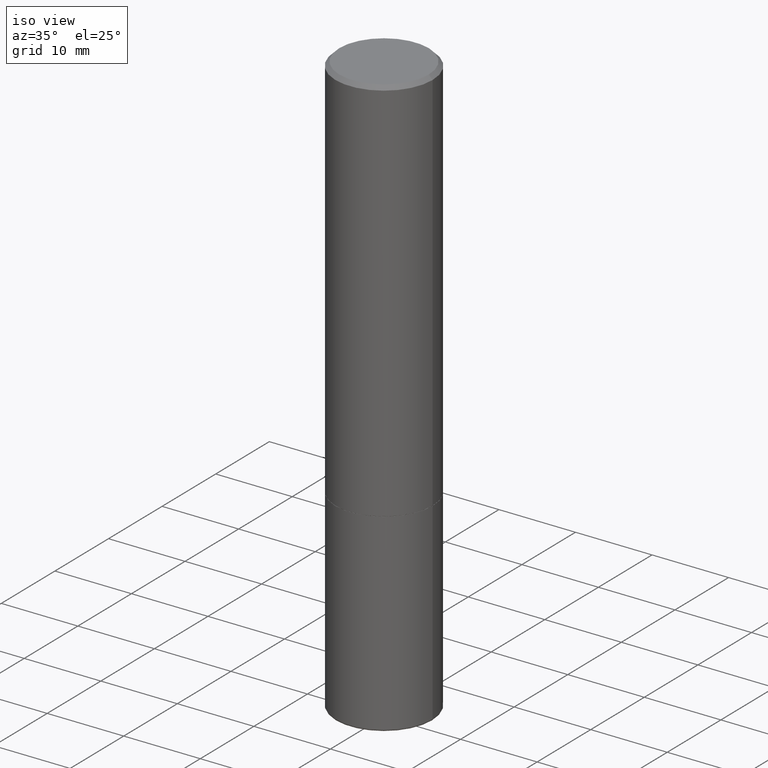
[diagram: clean part render]
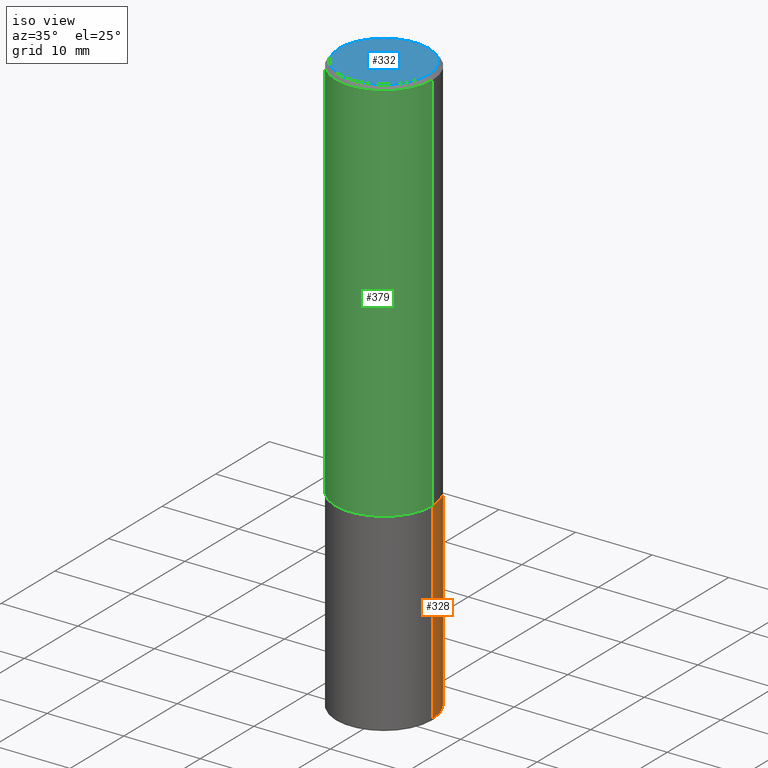
[diagram: same view with three faces highlighted in distinct colors, each labeled with its STEP entity id]
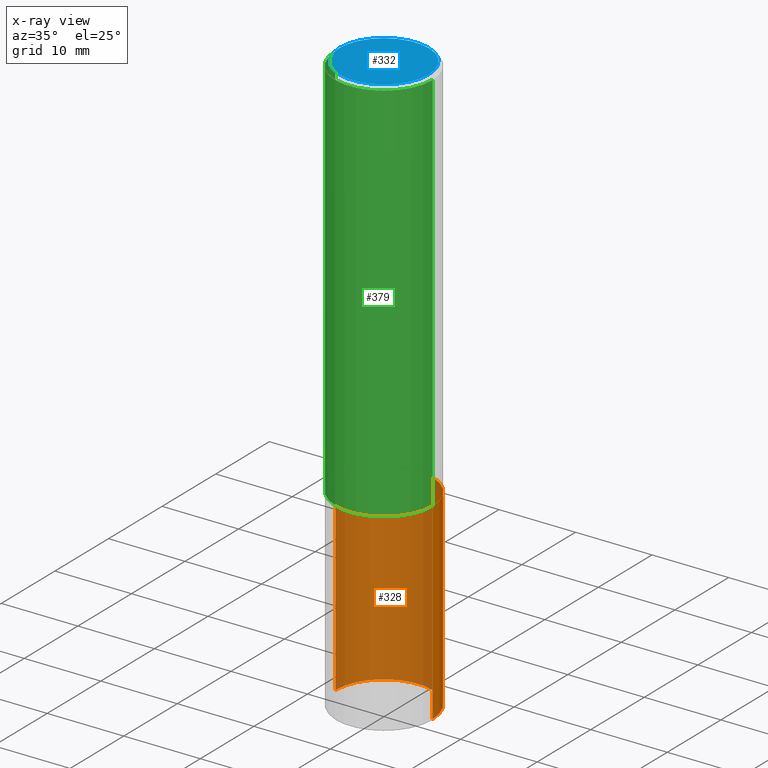
[diagram: x-ray of the same camera — body ghosted, the three highlighted faces saturated]
A machine part, iso view with three faces highlighted in distinct colors.
The next image is the same camera in x-ray (body ghosted, the three faces saturated) — at least one of them is partly hidden behind the body in this view.
Their STEP definitions:

[orange] entity #328 — the highlighted cylindrical surface (partial cylindrical patch) has radius 6.35 mm, axis along (-0, 0, 1).
#12 = EDGE_LOOP ( 'NONE', ( #334, #292, #47, #294 ) ) ;
#17 = CARTESIAN_POINT ( 'NONE',  ( 0.2499999999999998890, -1.218526987256257138E-14, -2.990000000000000213 ) ) ;
#24 = EDGE_CURVE ( 'NONE', #305, #231, #298, .T. ) ;
#39 = AXIS2_PLACEMENT_3D ( 'NONE', #308, #209, #180 ) ;
#47 = ORIENTED_EDGE ( 'NONE', *, *, #277, .F. ) ;
#60 = DIRECTION ( 'NONE',  ( -2.445468806185136597E-29, 3.491481338843145583E-15, 1.000000000000000000 ) ) ;
#95 = VECTOR ( 'NONE', #97, 39.37007874015748143 ) ;
#97 = DIRECTION ( 'NONE',  ( -2.445468806185136877E-29, 3.491481338843145188E-15, 1.000000000000000000 ) ) ;
#104 = VERTEX_POINT ( 'NONE', #260 ) ;
#114 = EDGE_CURVE ( 'NONE', #231, #248, #131, .T. ) ;
#129 = CARTESIAN_POINT ( 'NONE',  ( -0.2499999999999998890, -8.663172363740755817E-15, -2.990000000000000213 ) ) ;
#131 = LINE ( 'NONE', #333, #95 ) ;
#144 = CYLINDRICAL_SURFACE ( 'NONE', #238, 0.2500000000000000000 ) ;
#161 = LINE ( 'NONE', #401, #211 ) ;
#180 = DIRECTION ( 'NONE',  ( 1.000000000000000000, -6.982962677686266711E-15, 0.000000000000000000 ) ) ;
#184 = CARTESIAN_POINT ( 'NONE',  ( 7.311951730493558245E-29, -1.043952920314100628E-14, -2.990000000000000213 ) ) ;
#205 = EDGE_CURVE ( 'NONE', #305, #104, #161, .T. ) ;
#207 = CIRCLE ( 'NONE', #39, 0.2500000000000000000 ) ;
#209 = DIRECTION ( 'NONE',  ( -2.445468806185136597E-29, 3.491481338843145583E-15, 1.000000000000000000 ) ) ;
#211 = VECTOR ( 'NONE', #362, 39.37007874015748143 ) ;
#229 = AXIS2_PLACEMENT_3D ( 'NONE', #184, #60, #315 ) ;
#231 = VERTEX_POINT ( 'NONE', #129 ) ;
#238 = AXIS2_PLACEMENT_3D ( 'NONE', #335, #266, #270 ) ;
#248 = VERTEX_POINT ( 'NONE', #258 ) ;
#258 = CARTESIAN_POINT ( 'NONE',  ( -0.2500000000000000000, -6.934889101013398653E-15, -2.000000000000000444 ) ) ;
#260 = CARTESIAN_POINT ( 'NONE',  ( 0.2500000000000000000, -8.728703347107858632E-15, -2.000000000000000444 ) ) ;
#266 = DIRECTION ( 'NONE',  ( -2.445468806185136597E-29, 3.491481338843145583E-15, 1.000000000000000000 ) ) ;
#270 = DIRECTION ( 'NONE',  ( 1.000000000000000000, -6.982962677686266711E-15, 4.876176775795935793E-29 ) ) ;
#277 = EDGE_CURVE ( 'NONE', #104, #248, #207, .T. ) ;
#292 = ORIENTED_EDGE ( 'NONE', *, *, #114, .T. ) ;
#294 = ORIENTED_EDGE ( 'NONE', *, *, #205, .F. ) ;
#298 = CIRCLE ( 'NONE', #229, 0.2500000000000000000 ) ;
#305 = VERTEX_POINT ( 'NONE', #17 ) ;
#308 = CARTESIAN_POINT ( 'NONE',  ( 4.890937612370273754E-29, -6.982962677686291954E-15, -2.000000000000000444 ) ) ;
#315 = DIRECTION ( 'NONE',  ( 1.000000000000000000, -6.982962677686262766E-15, 0.000000000000000000 ) ) ;
#328 = ADVANCED_FACE ( 'NONE', ( #371 ), #144, .T. ) ;
#333 = CARTESIAN_POINT ( 'NONE',  ( -0.2500000000000000000, 1.776356839400250465E-15, -1.229733772563726445E-29 ) ) ;
#334 = ORIENTED_EDGE ( 'NONE', *, *, #24, .T. ) ;
#335 = CARTESIAN_POINT ( 'NONE',  ( 0.000000000000000000, 0.000000000000000000, 0.000000000000000000 ) ) ;
#362 = DIRECTION ( 'NONE',  ( -2.445468806185136877E-29, 3.491481338843145188E-15, 1.000000000000000000 ) ) ;
#371 = FACE_OUTER_BOUND ( 'NONE', #12, .T. ) ;
#401 = CARTESIAN_POINT ( 'NONE',  ( 0.2500000000000000000, -1.745740669421566678E-15, 1.219044193948983948E-29 ) ) ;

[blue] entity #332 — the highlighted planar face has unit normal (0, -0, -1).
#20 = CARTESIAN_POINT ( 'NONE',  ( -1.148236555768741665E-45, 1.639377487418492057E-31, 4.695363739110452099E-17 ) ) ;
#55 = VERTEX_POINT ( 'NONE', #155 ) ;
#96 = CARTESIAN_POINT ( 'NONE',  ( -1.148236555768741665E-45, 1.639377487418492057E-31, 4.695363739110452099E-17 ) ) ;
#102 = ORIENTED_EDGE ( 'NONE', *, *, #146, .T. ) ;
#103 = DIRECTION ( 'NONE',  ( -2.445468806185136597E-29, 3.491481338843145583E-15, 1.000000000000000000 ) ) ;
#105 = DIRECTION ( 'NONE',  ( -1.000000000000000000, 6.982962677686265922E-15, -4.876176775795935793E-29 ) ) ;
#109 = PLANE ( 'NONE',  #307 ) ;
#110 = AXIS2_PLACEMENT_3D ( 'NONE', #20, #141, #116 ) ;
#111 = FACE_OUTER_BOUND ( 'NONE', #196, .T. ) ;
#116 = DIRECTION ( 'NONE',  ( 1.000000000000000000, -6.982962677686267499E-15, 4.875813741439101456E-29 ) ) ;
#140 = AXIS2_PLACEMENT_3D ( 'NONE', #96, #103, #330 ) ;
#141 = DIRECTION ( 'NONE',  ( -2.445468806185136597E-29, 3.491481338843145583E-15, 1.000000000000000000 ) ) ;
#146 = EDGE_CURVE ( 'NONE', #55, #370, #172, .T. ) ;
#150 = CIRCLE ( 'NONE', #110, 0.2299999999999999267 ) ;
#155 = CARTESIAN_POINT ( 'NONE',  ( 0.2299999999999999267, -1.681434332853598617E-15, 4.695363739111602110E-17 ) ) ;
#171 = ORIENTED_EDGE ( 'NONE', *, *, #367, .T. ) ;
#172 = CIRCLE ( 'NONE', #140, 0.2299999999999999267 ) ;
#196 = EDGE_LOOP ( 'NONE', ( #171, #102 ) ) ;
#276 = DIRECTION ( 'NONE',  ( 2.438088387897960049E-29, -3.491481338843145188E-15, -1.000000000000000000 ) ) ;
#300 = CARTESIAN_POINT ( 'NONE',  ( 1.606081415867840870E-15, 0.2299999999999999267, -7.795638892383710465E-16 ) ) ;
#307 = AXIS2_PLACEMENT_3D ( 'NONE', #300, #276, #105 ) ;
#330 = DIRECTION ( 'NONE',  ( 1.000000000000000000, -6.982962677686267499E-15, 4.875813741439101456E-29 ) ) ;
#332 = ADVANCED_FACE ( 'NONE', ( #111 ), #109, .F. ) ;
#367 = EDGE_CURVE ( 'NONE', #370, #55, #150, .T. ) ;
#370 = VERTEX_POINT ( 'NONE', #377 ) ;
#377 = CARTESIAN_POINT ( 'NONE',  ( -0.2299999999999999267, 1.640996229256272519E-15, 4.695363739109317495E-17 ) ) ;

[green] entity #379 — the highlighted cylindrical surface (partial cylindrical patch) has radius 6.35 mm, axis along (-0, 0, 1).
#14 = CARTESIAN_POINT ( 'NONE',  ( 4.890937612370287172E-31, -6.982962677686310098E-17, -0.02000000000000005593 ) ) ;
#16 = EDGE_LOOP ( 'NONE', ( #174, #130, #345, #147 ) ) ;
#33 = CARTESIAN_POINT ( 'NONE',  ( 0.000000000000000000, 0.000000000000000000, 0.000000000000000000 ) ) ;
#34 = EDGE_CURVE ( 'NONE', #206, #373, #133, .T. ) ;
#40 = DIRECTION ( 'NONE',  ( -2.445468806185136597E-29, 3.491481338843145583E-15, 1.000000000000000000 ) ) ;
#49 = CARTESIAN_POINT ( 'NONE',  ( -0.2500000000000002220, -1.748293572161901516E-15, -1.999000000000000110 ) ) ;
#61 = DIRECTION ( 'NONE',  ( 1.000000000000000000, -6.982962677686267499E-15, 4.876176775795936353E-29 ) ) ;
#69 = DIRECTION ( 'NONE',  ( -2.445468806185136597E-29, 3.491481338843145583E-15, 1.000000000000000000 ) ) ;
#72 = LINE ( 'NONE', #297, #263 ) ;
#98 = CARTESIAN_POINT ( 'NONE',  ( -0.2500000000000000000, 1.675911042644703577E-15, -0.02000000000000005593 ) ) ;
#100 = CIRCLE ( 'NONE', #164, 0.2500000000000002220 ) ;
#115 = VERTEX_POINT ( 'NONE', #170 ) ;
#118 = EDGE_CURVE ( 'NONE', #115, #373, #72, .T. ) ;
#125 = VECTOR ( 'NONE', #314, 39.37007874015748143 ) ;
#130 = ORIENTED_EDGE ( 'NONE', *, *, #257, .T. ) ;
#133 = CIRCLE ( 'NONE', #185, 0.2500000000000000000 ) ;
#147 = ORIENTED_EDGE ( 'NONE', *, *, #34, .F. ) ;
#164 = AXIS2_PLACEMENT_3D ( 'NONE', #397, #40, #165 ) ;
#165 = DIRECTION ( 'NONE',  ( 1.000000000000000000, -6.982962677686268288E-15, 0.000000000000000000 ) ) ;
#166 = DIRECTION ( 'NONE',  ( 1.000000000000000000, -6.982962677686266711E-15, 0.000000000000000000 ) ) ;
#170 = CARTESIAN_POINT ( 'NONE',  ( 0.2500000000000002220, -8.725211865769017202E-15, -1.999000000000000110 ) ) ;
#174 = ORIENTED_EDGE ( 'NONE', *, *, #390, .F. ) ;
#183 = CYLINDRICAL_SURFACE ( 'NONE', #352, 0.2500000000000001110 ) ;
#185 = AXIS2_PLACEMENT_3D ( 'NONE', #14, #69, #166 ) ;
#189 = LINE ( 'NONE', #418, #125 ) ;
#206 = VERTEX_POINT ( 'NONE', #98 ) ;
#257 = EDGE_CURVE ( 'NONE', #342, #115, #100, .T. ) ;
#263 = VECTOR ( 'NONE', #324, 39.37007874015748143 ) ;
#297 = CARTESIAN_POINT ( 'NONE',  ( 0.2500000000000001110, -1.745740669421567664E-15, 1.219044193948984649E-29 ) ) ;
#314 = DIRECTION ( 'NONE',  ( -2.445468806185136877E-29, 3.491481338843145188E-15, 1.000000000000000000 ) ) ;
#320 = DIRECTION ( 'NONE',  ( -2.445468806185136597E-29, 3.491481338843145583E-15, 1.000000000000000000 ) ) ;
#324 = DIRECTION ( 'NONE',  ( -2.445468806185136877E-29, 3.491481338843145188E-15, 1.000000000000000000 ) ) ;
#342 = VERTEX_POINT ( 'NONE', #49 ) ;
#345 = ORIENTED_EDGE ( 'NONE', *, *, #118, .T. ) ;
#352 = AXIS2_PLACEMENT_3D ( 'NONE', #33, #320, #61 ) ;
#356 = FACE_OUTER_BOUND ( 'NONE', #16, .T. ) ;
#373 = VERTEX_POINT ( 'NONE', #375 ) ;
#375 = CARTESIAN_POINT ( 'NONE',  ( 0.2500000000000000000, -1.784954126219746189E-15, -0.02000000000000005593 ) ) ;
#379 = ADVANCED_FACE ( 'NONE', ( #356 ), #183, .T. ) ;
#390 = EDGE_CURVE ( 'NONE', #342, #206, #189, .T. ) ;
#397 = CARTESIAN_POINT ( 'NONE',  ( 4.888492143564088712E-29, -6.979471196347448158E-15, -1.999000000000000110 ) ) ;
#418 = CARTESIAN_POINT ( 'NONE',  ( -0.2500000000000001110, 1.776356839400251254E-15, -1.229733772563727146E-29 ) ) ;